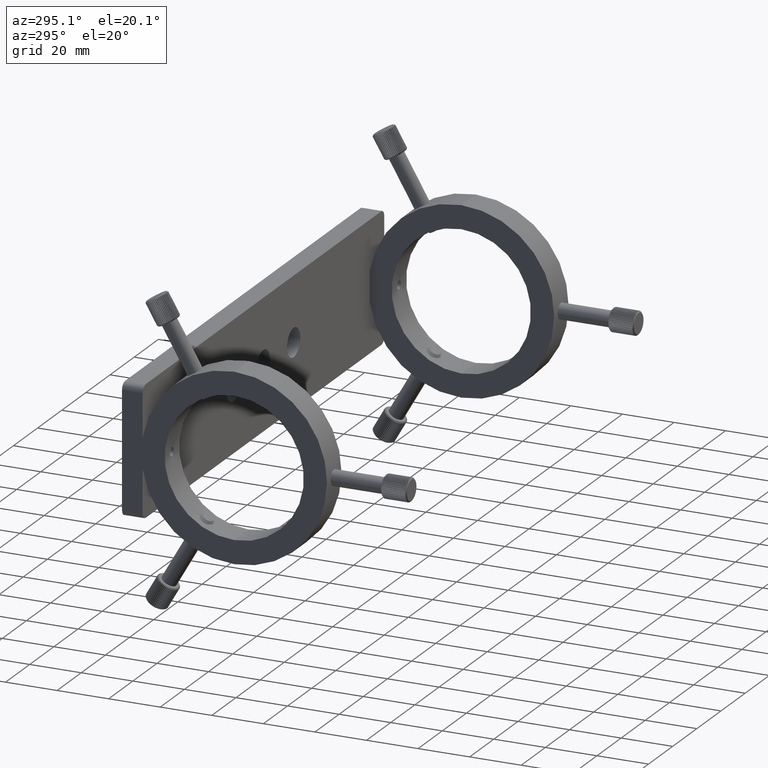
[diagram: clean part render]
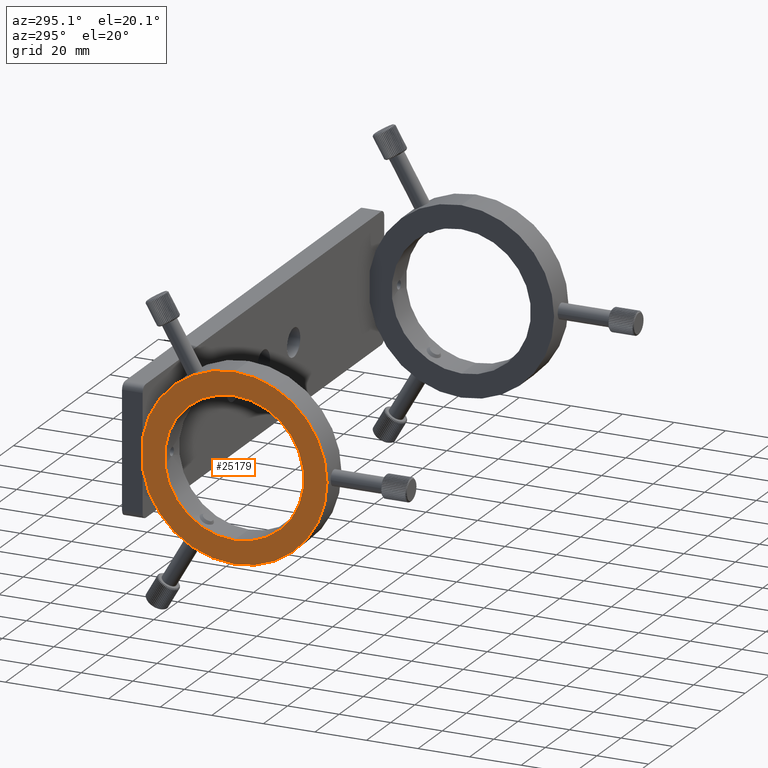
[diagram: same view with one face highlighted and labeled with its STEP entity id]
A machine part, auxiliary view. The second image highlights one B-rep face of the part: STEP entity #25179.
In plain terms, the highlighted planar face has unit normal (-1, -0, -0).
Its self-contained STEP definition (entity closure, byte-faithful):
#243 = CARTESIAN_POINT ( 'NONE',  ( -103.6330608537693500, -52.91295791704508400, 2.130934317889909500E-014 ) ) ;
#515 = CIRCLE ( 'NONE', #607, 27.00000000000002500 ) ;
#607 = AXIS2_PLACEMENT_3D ( 'NONE', #26595, #14077, #21927 ) ;
#1018 = LINE ( 'NONE', #18718, #15389 ) ;
#1281 = CIRCLE ( 'NONE', #18355, 36.00000000000002800 ) ;
#2654 = EDGE_CURVE ( 'NONE', #15193, #5036, #21152, .T. ) ;
#3219 = CARTESIAN_POINT ( 'NONE',  ( -103.6330608537693400, -17.41295791704507700, -5.979130371550700900 ) ) ;
#3268 = VERTEX_POINT ( 'NONE', #3219 ) ;
#3525 = ORIENTED_EDGE ( 'NONE', *, *, #31293, .T. ) ;
#3755 = EDGE_CURVE ( 'NONE', #3268, #13735, #28227, .T. ) ;
#3786 = CARTESIAN_POINT ( 'NONE',  ( -103.6330608537693500, -52.91295791704510500, -35.99999999999997900 ) ) ;
#4951 = DIRECTION ( 'NONE',  ( 0.0000000000000000000, -5.782411586589352700E-016, -1.000000000000000000 ) ) ;
#5036 = VERTEX_POINT ( 'NONE', #5692 ) ;
#5060 = FACE_BOUND ( 'NONE', #16226, .T. ) ;
#5339 = AXIS2_PLACEMENT_3D ( 'NONE', #19824, #17162, #22257 ) ;
#5463 = FACE_OUTER_BOUND ( 'NONE', #13970, .T. ) ;
#5692 = CARTESIAN_POINT ( 'NONE',  ( -103.6330608537693500, -52.91295791704506300, 27.00000000000002100 ) ) ;
#6484 = EDGE_CURVE ( 'NONE', #5036, #15193, #515, .T. ) ;
#6603 = EDGE_CURVE ( 'NONE', #13735, #13643, #7358, .T. ) ;
#7094 = EDGE_CURVE ( 'NONE', #13643, #8117, #1281, .T. ) ;
#7358 = CIRCLE ( 'NONE', #5339, 36.00000000000002800 ) ;
#8114 = ORIENTED_EDGE ( 'NONE', *, *, #6603, .T. ) ;
#8117 = VERTEX_POINT ( 'NONE', #8531 ) ;
#8531 = CARTESIAN_POINT ( 'NONE',  ( -103.6330608537693800, -17.41295791704509100, 5.979130371550706300 ) ) ;
#8646 = AXIS2_PLACEMENT_3D ( 'NONE', #9225, #31873, #16643 ) ;
#9225 = CARTESIAN_POINT ( 'NONE',  ( -103.6330608537693500, -52.91295791704508400, 2.130934317889909500E-014 ) ) ;
#9897 = CARTESIAN_POINT ( 'NONE',  ( -103.6330608537693500, -52.91295791704508400, 2.130934317889909500E-014 ) ) ;
#12469 = CARTESIAN_POINT ( 'NONE',  ( -103.6330608537693500, -52.91295791704510500, -26.99999999999997900 ) ) ;
#12549 = DIRECTION ( 'NONE',  ( 0.0000000000000000000, -5.139921410301645900E-016, -1.000000000000000000 ) ) ;
#13072 = ORIENTED_EDGE ( 'NONE', *, *, #7094, .T. ) ;
#13643 = VERTEX_POINT ( 'NONE', #23145 ) ;
#13735 = VERTEX_POINT ( 'NONE', #3786 ) ;
#13970 = EDGE_LOOP ( 'NONE', ( #22864, #8114, #13072, #3525 ) ) ;
#14077 = DIRECTION ( 'NONE',  ( -1.000000000000000000, -3.227553289772365600E-016, -6.245004513516485800E-017 ) ) ;
#14852 = CARTESIAN_POINT ( 'NONE',  ( -103.6330608537693500, -52.91295791704508400, 2.130934317889909500E-014 ) ) ;
#15193 = VERTEX_POINT ( 'NONE', #12469 ) ;
#15389 = VECTOR ( 'NONE', #28560, 1000.000000000000000 ) ;
#16226 = EDGE_LOOP ( 'NONE', ( #24072, #20666 ) ) ;
#16643 = DIRECTION ( 'NONE',  ( 6.245004513516484600E-017, -5.457414612978047800E-016, -1.000000000000000000 ) ) ;
#16874 = PLANE ( 'NONE',  #8646 ) ;
#17162 = DIRECTION ( 'NONE',  ( -1.000000000000000000, -3.227553289772365600E-016, -6.245004513516485800E-017 ) ) ;
#18355 = AXIS2_PLACEMENT_3D ( 'NONE', #14852, #20296, #25066 ) ;
#18718 = CARTESIAN_POINT ( 'NONE',  ( -103.6330608537693800, -17.41295791704509100, 5.979130371550706300 ) ) ;
#19759 = AXIS2_PLACEMENT_3D ( 'NONE', #243, #32971, #12549 ) ;
#19824 = CARTESIAN_POINT ( 'NONE',  ( -103.6330608537693500, -52.91295791704508400, 2.130934317889909500E-014 ) ) ;
#20296 = DIRECTION ( 'NONE',  ( -1.000000000000000000, -3.227553289772365600E-016, -6.245004513516485800E-017 ) ) ;
#20666 = ORIENTED_EDGE ( 'NONE', *, *, #2654, .F. ) ;
#21152 = CIRCLE ( 'NONE', #19759, 27.00000000000002500 ) ;
#21927 = DIRECTION ( 'NONE',  ( 0.0000000000000000000, -5.139921410301645900E-016, -1.000000000000000000 ) ) ;
#22257 = DIRECTION ( 'NONE',  ( 0.0000000000000000000, -5.782411586589352700E-016, -1.000000000000000000 ) ) ;
#22864 = ORIENTED_EDGE ( 'NONE', *, *, #3755, .T. ) ;
#23145 = CARTESIAN_POINT ( 'NONE',  ( -103.6330608537693500, -52.91295791704506300, 36.00000000000002100 ) ) ;
#24072 = ORIENTED_EDGE ( 'NONE', *, *, #6484, .F. ) ;
#24665 = AXIS2_PLACEMENT_3D ( 'NONE', #9897, #27612, #4951 ) ;
#25066 = DIRECTION ( 'NONE',  ( 0.0000000000000000000, -5.782411586589352700E-016, -1.000000000000000000 ) ) ;
#25179 = ADVANCED_FACE ( 'NONE', ( #5463, #5060 ), #16874, .T. ) ;
#26595 = CARTESIAN_POINT ( 'NONE',  ( -103.6330608537693500, -52.91295791704508400, 2.130934317889909500E-014 ) ) ;
#27612 = DIRECTION ( 'NONE',  ( -1.000000000000000000, -3.227553289772365600E-016, -6.245004513516485800E-017 ) ) ;
#28227 = CIRCLE ( 'NONE', #24665, 36.00000000000002800 ) ;
#28560 = DIRECTION ( 'NONE',  ( 6.245004513516505500E-017, -5.457414612978047800E-016, -1.000000000000000000 ) ) ;
#31293 = EDGE_CURVE ( 'NONE', #8117, #3268, #1018, .T. ) ;
#31873 = DIRECTION ( 'NONE',  ( -1.000000000000000000, -3.227553289772365600E-016, -6.245004513516467300E-017 ) ) ;
#32971 = DIRECTION ( 'NONE',  ( -1.000000000000000000, -3.227553289772365600E-016, -6.245004513516485800E-017 ) ) ;